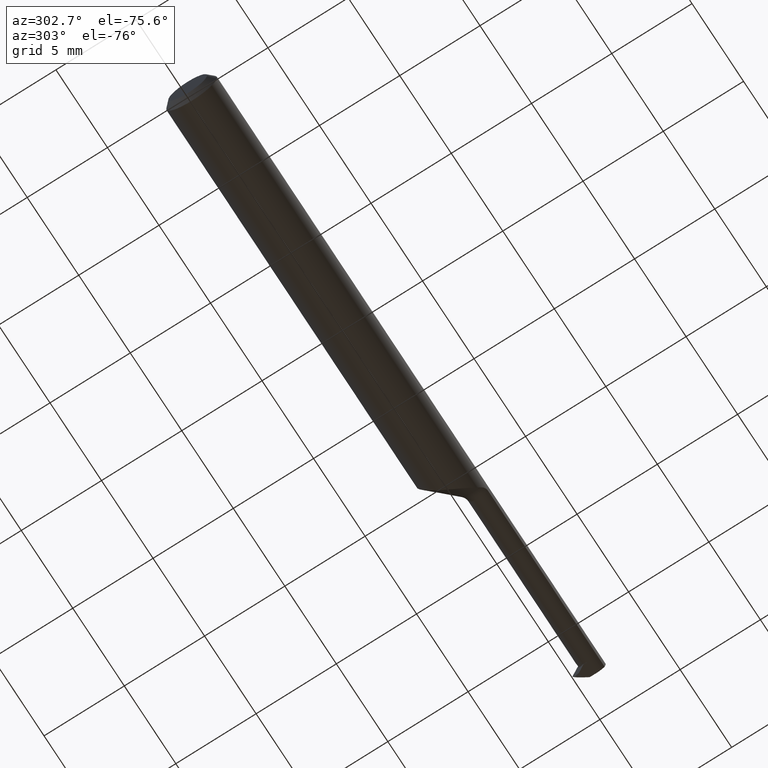
[diagram: clean part render]
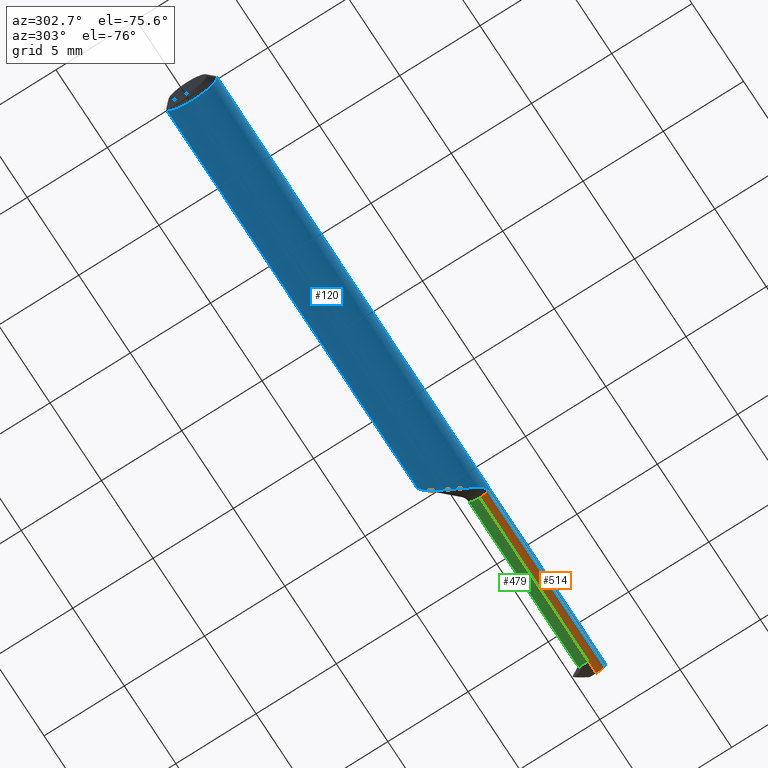
[diagram: same view with three faces highlighted in distinct colors, each labeled with its STEP entity id]
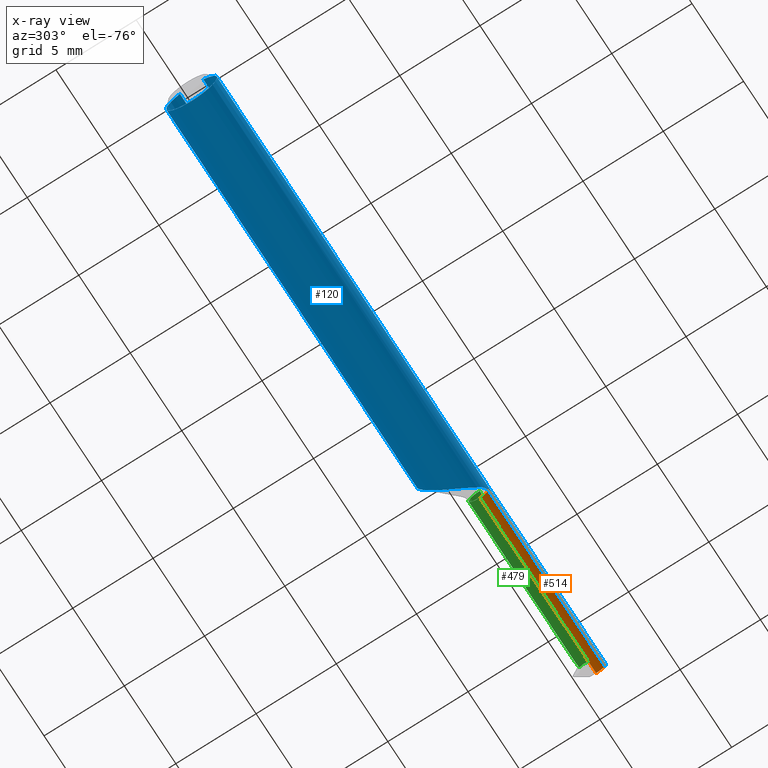
[diagram: x-ray of the same camera — body ghosted, the three highlighted faces saturated]
A machine part, auxiliary view with three faces highlighted in distinct colors.
The next image is the same camera in x-ray (body ghosted, the three faces saturated) — at least one of them is partly hidden behind the body in this view.
Their STEP definitions:

[orange] entity #514 — the highlighted cylindrical surface (edge-blend (fillet) strip) has radius 0.6985 mm, axis along (-1, -0, -0).
#7 = ORIENTED_EDGE ( 'NONE', *, *, #414, .T. ) ;
#25 = VECTOR ( 'NONE', #646, 39.37007874015748143 ) ;
#39 = VERTEX_POINT ( 'NONE', #274 ) ;
#89 = VERTEX_POINT ( 'NONE', #464 ) ;
#93 = DIRECTION ( 'NONE',  ( -1.000000000000000000, -0.000000000000000000, -0.000000000000000000 ) ) ;
#96 = VERTEX_POINT ( 'NONE', #547 ) ;
#101 = CARTESIAN_POINT ( 'NONE',  ( 1.499999999999999778, -0.03885000000000000259, 0.000000000000000000 ) ) ;
#112 = VECTOR ( 'NONE', #947, 39.37007874015748143 ) ;
#129 = ORIENTED_EDGE ( 'NONE', *, *, #722, .F. ) ;
#151 = EDGE_CURVE ( 'NONE', #971, #39, #1063, .T. ) ;
#158 = CYLINDRICAL_SURFACE ( 'NONE', #763, 0.02749999999999999667 ) ;
#209 = CARTESIAN_POINT ( 'NONE',  ( 1.055355339059327324, -0.03885000000000000259, -0.02749999999999999667 ) ) ;
#228 = DIRECTION ( 'NONE',  ( 1.000000000000000000, 0.000000000000000000, 0.000000000000000000 ) ) ;
#254 = ORIENTED_EDGE ( 'NONE', *, *, #151, .F. ) ;
#274 = CARTESIAN_POINT ( 'NONE',  ( 1.469999999999999973, -0.03885000000000000259, -0.02750000000000000014 ) ) ;
#283 = ORIENTED_EDGE ( 'NONE', *, *, #998, .T. ) ;
#316 = FACE_OUTER_BOUND ( 'NONE', #372, .T. ) ;
#352 = CIRCLE ( 'NONE', #762, 0.02749999999999999667 ) ;
#354 = CIRCLE ( 'NONE', #625, 0.02749999999999999667 ) ;
#372 = EDGE_LOOP ( 'NONE', ( #129, #254, #1004, #7, #283 ) ) ;
#386 = EDGE_CURVE ( 'NONE', #89, #971, #352, .T. ) ;
#390 = DIRECTION ( 'NONE',  ( -1.000000000000000000, -0.000000000000000000, -0.000000000000000000 ) ) ;
#414 = EDGE_CURVE ( 'NONE', #89, #96, #1038, .T. ) ;
#464 = CARTESIAN_POINT ( 'NONE',  ( 1.499999999999999778, -0.05972451737451738019, -0.01790264015113334287 ) ) ;
#487 = DIRECTION ( 'NONE',  ( 0.000000000000000000, 0.000000000000000000, 1.000000000000000000 ) ) ;
#514 = ADVANCED_FACE ( 'NONE', ( #316 ), #158, .T. ) ;
#547 = CARTESIAN_POINT ( 'NONE',  ( 1.055355339059327324, -0.05972451737451738019, -0.01790264015113335327 ) ) ;
#561 = DIRECTION ( 'NONE',  ( 0.000000000000000000, 0.000000000000000000, 1.000000000000000000 ) ) ;
#615 = CARTESIAN_POINT ( 'NONE',  ( 1.257499999999999840, -0.05972451737451738019, -0.01790264015113335327 ) ) ;
#625 = AXIS2_PLACEMENT_3D ( 'NONE', #968, #228, #561 ) ;
#637 = CARTESIAN_POINT ( 'NONE',  ( 1.499999999999999778, -0.03885000000000000259, -0.02750000000000000014 ) ) ;
#646 = DIRECTION ( 'NONE',  ( -1.000000000000000000, -0.000000000000000000, -0.000000000000000000 ) ) ;
#665 = CARTESIAN_POINT ( 'NONE',  ( 1.044999999999999929, -0.03885000000000000259, -0.02749999999999999667 ) ) ;
#691 = DIRECTION ( 'NONE',  ( 0.000000000000000000, 0.000000000000000000, 1.000000000000000000 ) ) ;
#722 = EDGE_CURVE ( 'NONE', #39, #843, #829, .T. ) ;
#762 = AXIS2_PLACEMENT_3D ( 'NONE', #101, #1026, #691 ) ;
#763 = AXIS2_PLACEMENT_3D ( 'NONE', #984, #390, #487 ) ;
#829 = LINE ( 'NONE', #665, #872 ) ;
#843 = VERTEX_POINT ( 'NONE', #209 ) ;
#872 = VECTOR ( 'NONE', #93, 39.37007874015748143 ) ;
#897 = CARTESIAN_POINT ( 'NONE',  ( 1.499999999999999778, -0.03885000000000000259, -0.02750000000000000014 ) ) ;
#947 = DIRECTION ( 'NONE',  ( -1.000000000000000000, -0.000000000000000000, -0.000000000000000000 ) ) ;
#968 = CARTESIAN_POINT ( 'NONE',  ( 1.055355339059327324, -0.03885000000000000259, 0.000000000000000000 ) ) ;
#971 = VERTEX_POINT ( 'NONE', #637 ) ;
#984 = CARTESIAN_POINT ( 'NONE',  ( 1.044999999999999929, -0.03885000000000000259, 0.000000000000000000 ) ) ;
#998 = EDGE_CURVE ( 'NONE', #96, #843, #354, .T. ) ;
#1004 = ORIENTED_EDGE ( 'NONE', *, *, #386, .F. ) ;
#1026 = DIRECTION ( 'NONE',  ( 1.000000000000000000, -0.000000000000000000, -0.000000000000000000 ) ) ;
#1038 = LINE ( 'NONE', #615, #112 ) ;
#1063 = LINE ( 'NONE', #897, #25 ) ;

[blue] entity #120 — the highlighted cylindrical surface (edge-blend (fillet) strip) has radius 1.5837 mm, axis along (-1, -0, -0).
#4 = EDGE_CURVE ( 'NONE', #69, #52, #277, .T. ) ;
#17 = CARTESIAN_POINT ( 'NONE',  ( 1.037677669529663449, -0.05385135522026621852, -0.03142537256645825533 ) ) ;
#21 = CARTESIAN_POINT ( 'NONE',  ( 0.9722224356403925682, 0.05995626412827578799, -0.01772608049554733403 ) ) ;
#27 = DIRECTION ( 'NONE',  ( -1.000000000000000000, -0.000000000000000000, -0.000000000000000000 ) ) ;
#35 = DIRECTION ( 'NONE',  ( 0.000000000000000000, 0.000000000000000000, -1.000000000000000000 ) ) ;
#38 = DIRECTION ( 'NONE',  ( 0.000000000000000000, 0.000000000000000000, -1.000000000000000000 ) ) ;
#43 = AXIS2_PLACEMENT_3D ( 'NONE', #581, #772, #35 ) ;
#48 = VERTEX_POINT ( 'NONE', #366 ) ;
#52 = VERTEX_POINT ( 'NONE', #769 ) ;
#54 = EDGE_CURVE ( 'NONE', #949, #89, #1058, .T. ) ;
#62 = DIRECTION ( 'NONE',  ( -1.000000000000000000, -0.000000000000000000, -0.000000000000000000 ) ) ;
#63 = CARTESIAN_POINT ( 'NONE',  ( 0.9729442690431107099, 0.05809375549093097335, 0.02309712269758999389 ) ) ;
#66 = DIRECTION ( 'NONE',  ( 0.000000000000000000, 0.000000000000000000, 1.000000000000000000 ) ) ;
#69 = VERTEX_POINT ( 'NONE', #391 ) ;
#85 = CARTESIAN_POINT ( 'NONE',  ( 0.9713154247326142299, 0.06230982057334929353, 0.005130711495986848419 ) ) ;
#88 = CARTESIAN_POINT ( 'NONE',  ( 1.037677669529663449, -0.05385135522026621852, -0.03142537256645825533 ) ) ;
#89 = VERTEX_POINT ( 'NONE', #464 ) ;
#96 = VERTEX_POINT ( 'NONE', #547 ) ;
#99 = EDGE_CURVE ( 'NONE', #302, #753, #966, .T. ) ;
#103 = CARTESIAN_POINT ( 'NONE',  ( 0.9980987072500633328, 0.001730114354342544717, -0.06245995668959661296 ) ) ;
#107 = CARTESIAN_POINT ( 'NONE',  ( 1.023733208020211061, -0.03885000000000005810, 0.04876679197978883024 ) ) ;
#112 = VECTOR ( 'NONE', #947, 39.37007874015748143 ) ;
#117 = ORIENTED_EDGE ( 'NONE', *, *, #344, .T. ) ;
#120 = ADVANCED_FACE ( 'NONE', ( #864 ), #141, .T. ) ;
#121 = CARTESIAN_POINT ( 'NONE',  ( 0.9851666200689770392, 0.02870365830342894511, 0.05534999999999997561 ) ) ;
#123 = ORIENTED_EDGE ( 'NONE', *, *, #703, .F. ) ;
#126 = EDGE_LOOP ( 'NONE', ( #244, #937, #688, #375, #1021, #123, #724, #807, #773, #575, #367, #117, #267, #505, #392, #636 ) ) ;
#127 = CARTESIAN_POINT ( 'NONE',  ( 1.439999999999999947, -0.06234999999999999570, -6.429183357567478880E-17 ) ) ;
#134 = EDGE_CURVE ( 'NONE', #949, #790, #559, .T. ) ;
#141 = CYLINDRICAL_SURFACE ( 'NONE', #582, 0.06235000000000000264 ) ;
#150 = CARTESIAN_POINT ( 'NONE',  ( 1.439999999999999947, 0.000000000000000000, 0.000000000000000000 ) ) ;
#162 = LINE ( 'NONE', #648, #903 ) ;
#165 = CARTESIAN_POINT ( 'NONE',  ( 0.9742893586426695229, 0.05467086465906029202, -0.03031740632397479651 ) ) ;
#181 = B_SPLINE_CURVE_WITH_KNOTS ( 'NONE', 3,
 ( #649, #721, #921, #256, #580, #846, #272, #760 ),
 .UNSPECIFIED., .F., .F.,
 ( 4, 2, 2, 4 ),
 ( 0.000000000000000000, 0.0001520623912201034408, 0.0003041247824402068816, 0.0006082495648804138715 ),
 .UNSPECIFIED. ) ;
#189 = CARTESIAN_POINT ( 'NONE',  ( 0.9817422602534694454, 0.03640149399939510144, 0.05135802085830259295 ) ) ;
#193 = CARTESIAN_POINT ( 'NONE',  ( 1.033302845076482734, -0.04993007895621526249, 0.03814497598772664116 ) ) ;
#195 = DIRECTION ( 'NONE',  ( 1.000000000000000000, 0.000000000000000000, 0.000000000000000000 ) ) ;
#198 = CIRCLE ( 'NONE', #504, 0.06235000000000000264 ) ;
#200 = CARTESIAN_POINT ( 'NONE',  ( 0.9788518337353812049, 0.04334661969057043013, 0.04571092020812050211 ) ) ;
#207 = EDGE_CURVE ( 'NONE', #431, #871, #336, .T. ) ;
#211 = CARTESIAN_POINT ( 'NONE',  ( 1.018733531415046745, -0.03233321753624625317, 0.05346776643160169179 ) ) ;
#229 = CARTESIAN_POINT ( 'NONE',  ( 1.433976312694926536, -0.06233532789531963381, 0.006173687305072898118 ) ) ;
#233 = CARTESIAN_POINT ( 'NONE',  ( 1.499999999999999778, -0.06235000000000000264, -6.429183357567480113E-17 ) ) ;
#244 = ORIENTED_EDGE ( 'NONE', *, *, #414, .F. ) ;
#252 = CARTESIAN_POINT ( 'NONE',  ( 1.014024832587619329, -0.02552496785297198381, -0.05702093782527752064 ) ) ;
#256 = CARTESIAN_POINT ( 'NONE',  ( 1.047866206273388112, -0.05894694571550945783, 0.02033969457127459204 ) ) ;
#267 = ORIENTED_EDGE ( 'NONE', *, *, #1031, .T. ) ;
#270 = CARTESIAN_POINT ( 'NONE',  ( 1.028462430296367858, -0.04478639636982031935, 0.04403756970363210954 ) ) ;
#272 = CARTESIAN_POINT ( 'NONE',  ( 1.039645236820547547, -0.05561494025053111134, 0.02840324629810313944 ) ) ;
#277 = B_SPLINE_CURVE_WITH_KNOTS ( 'NONE', 3,
 ( #330, #592, #751, #252, #407, #584, #926, #674, #103, #488, #658, #999, #496, #429, #735, #827, #651, #931, #165, #485, #21, #817, #985, #85, #358, #848, #63, #712, #516, #200, #189, #121 ),
 .UNSPECIFIED., .F., .F.,
 ( 4, 2, 2, 2, 2, 2, 2, 2, 2, 2, 2, 2, 2, 2, 2, 4 ),
 ( 0.001101739622096912195, 0.001452069894890159214, 0.001802400167683406232, 0.002152730440476653250, 0.002503060713269900268, 0.002853390986063147287, 0.003203721258856394305, 0.003554051531649641323, 0.003904381804442888775, 0.004254712077236135793, 0.004605042350029382378, 0.004955372622822629830, 0.005305702895615876415, 0.005656033168409123867, 0.006006363441202370451, 0.006707023986788866222 ),
 .UNSPECIFIED. ) ;
#299 = CARTESIAN_POINT ( 'NONE',  ( 1.016227708862855295, -0.02870365830342892083, 0.05534999999999997561 ) ) ;
#300 = CARTESIAN_POINT ( 'NONE',  ( 1.499999999999999778, 0.000000000000000000, 0.000000000000000000 ) ) ;
#302 = VERTEX_POINT ( 'NONE', #107 ) ;
#304 = CARTESIAN_POINT ( 'NONE',  ( 1.439999999999999947, -0.06234981956669986836, 0.0001500000000000043779 ) ) ;
#305 = EDGE_CURVE ( 'NONE', #879, #69, #783, .T. ) ;
#306 = CARTESIAN_POINT ( 'NONE',  ( 1.499999999999999778, 0.000000000000000000, 0.000000000000000000 ) ) ;
#325 = DIRECTION ( 'NONE',  ( 1.000000000000000000, 0.000000000000000000, 0.000000000000000000 ) ) ;
#330 = CARTESIAN_POINT ( 'NONE',  ( 1.023733208020211061, -0.03885000000000004422, -0.04876679197978883717 ) ) ;
#336 = LINE ( 'NONE', #970, #400 ) ;
#344 = EDGE_CURVE ( 'NONE', #402, #604, #813, .T. ) ;
#348 = CARTESIAN_POINT ( 'NONE',  ( 1.047832365247211683, -0.05894029795486797896, -0.02035956102986121938 ) ) ;
#357 = CARTESIAN_POINT ( 'NONE',  ( 1.035473170448187652, -0.05187540166719752099, -0.03481141919040901811 ) ) ;
#358 = CARTESIAN_POINT ( 'NONE',  ( 0.9715312839368115405, 0.06174610747500347552, 0.009795929746699049909 ) ) ;
#361 = CARTESIAN_POINT ( 'NONE',  ( 1.026104383698202227, -0.04182643837930852260, -0.04639561630179755286 ) ) ;
#366 = CARTESIAN_POINT ( 'NONE',  ( 1.439999999999999947, -0.06234981956669986836, 0.0001500000000000043779 ) ) ;
#367 = ORIENTED_EDGE ( 'NONE', *, *, #750, .T. ) ;
#375 = ORIENTED_EDGE ( 'NONE', *, *, #611, .T. ) ;
#384 = CIRCLE ( 'NONE', #990, 0.06235000000000000264 ) ;
#391 = CARTESIAN_POINT ( 'NONE',  ( 1.023733208020211061, -0.03885000000000004422, -0.04876679197978883717 ) ) ;
#392 = ORIENTED_EDGE ( 'NONE', *, *, #305, .F. ) ;
#393 = CARTESIAN_POINT ( 'NONE',  ( 1.499999999999999778, -0.06234999999999984999, -6.429183357567480113E-17 ) ) ;
#400 = VECTOR ( 'NONE', #723, 39.37007874015748143 ) ;
#402 = VERTEX_POINT ( 'NONE', #1047 ) ;
#407 = CARTESIAN_POINT ( 'NONE',  ( 1.011663494146211262, -0.02189427596136639051, -0.05851335289745216578 ) ) ;
#413 = CARTESIAN_POINT ( 'NONE',  ( 1.055355339059327324, -0.05972451737451738019, -0.01790264015113335327 ) ) ;
#414 = EDGE_CURVE ( 'NONE', #89, #96, #1038, .T. ) ;
#421 = CARTESIAN_POINT ( 'NONE',  ( 0.01499999999999943046, 0.000000000000000000, 0.000000000000000000 ) ) ;
#429 = CARTESIAN_POINT ( 'NONE',  ( 0.9830508205128779542, 0.03348191903871845093, -0.05277080232193186865 ) ) ;
#431 = VERTEX_POINT ( 'NONE', #530 ) ;
#435 = DIRECTION ( 'NONE',  ( 1.000000000000000000, 0.000000000000000000, 0.000000000000000000 ) ) ;
#464 = CARTESIAN_POINT ( 'NONE',  ( 1.499999999999999778, -0.05972451737451738019, -0.01790264015113334287 ) ) ;
#485 = CARTESIAN_POINT ( 'NONE',  ( 0.9727941773035805317, 0.05847937178585023432, -0.02209551185907620077 ) ) ;
#488 = CARTESIAN_POINT ( 'NONE',  ( 0.9939622945388311148, 0.009871926661208896281, -0.06169914545065514205 ) ) ;
#493 = EDGE_CURVE ( 'NONE', #431, #302, #863, .T. ) ;
#496 = CARTESIAN_POINT ( 'NONE',  ( 0.9863768401225404547, 0.02596638437152509402, -0.05684666536293861427 ) ) ;
#504 = AXIS2_PLACEMENT_3D ( 'NONE', #150, #62, #66 ) ;
#505 = ORIENTED_EDGE ( 'NONE', *, *, #4, .F. ) ;
#506 = CARTESIAN_POINT ( 'NONE',  ( 1.039646166234848401, -0.05561577331029759347, -0.02840181874470474113 ) ) ;
#516 = CARTESIAN_POINT ( 'NONE',  ( 0.9754637940028884069, 0.05171048713799047264, 0.03512508805924585004 ) ) ;
#528 = CARTESIAN_POINT ( 'NONE',  ( 1.037677669529663449, -0.05385135522026621852, -0.03142537256645825533 ) ) ;
#530 = CARTESIAN_POINT ( 'NONE',  ( 1.016227708862855295, -0.02870365830342892083, 0.05534999999999997561 ) ) ;
#539 = DIRECTION ( 'NONE',  ( 0.000000000000000000, 0.000000000000000000, -1.000000000000000000 ) ) ;
#546 = CARTESIAN_POINT ( 'NONE',  ( 1.021233181470025064, -0.03571182047060825898, 0.05126681852997484745 ) ) ;
#547 = CARTESIAN_POINT ( 'NONE',  ( 1.055355339059327324, -0.05972451737451738019, -0.01790264015113335327 ) ) ;
#554 = CARTESIAN_POINT ( 'NONE',  ( 0.01499999999999943046, 0.02870365830342891042, 0.05534999999999997561 ) ) ;
#559 = LINE ( 'NONE', #233, #923 ) ;
#575 = ORIENTED_EDGE ( 'NONE', *, *, #207, .T. ) ;
#580 = CARTESIAN_POINT ( 'NONE',  ( 1.046280325031175407, -0.05852565866479598339, 0.02154519892461237776 ) ) ;
#581 = CARTESIAN_POINT ( 'NONE',  ( 0.01499999999999943046, 0.000000000000000000, 0.000000000000000000 ) ) ;
#582 = AXIS2_PLACEMENT_3D ( 'NONE', #306, #27, #794 ) ;
#584 = CARTESIAN_POINT ( 'NONE',  ( 1.007007020503531747, -0.01432349193528253961, -0.06081126019047899955 ) ) ;
#591 = EDGE_CURVE ( 'NONE', #48, #621, #1020, .T. ) ;
#592 = CARTESIAN_POINT ( 'NONE',  ( 1.021302242280715200, -0.03579850963891901411, -0.05119775771928491287 ) ) ;
#595 = CARTESIAN_POINT ( 'NONE',  ( 1.051372085594429295, -0.05954725492163364525, -0.01850931872423289271 ) ) ;
#597 = CARTESIAN_POINT ( 'NONE',  ( 1.037677669529663671, -0.05385135522026623933, 0.03142537256645821370 ) ) ;
#600 = LINE ( 'NONE', #825, #833 ) ;
#604 = VERTEX_POINT ( 'NONE', #554 ) ;
#611 = EDGE_CURVE ( 'NONE', #790, #48, #198, .T. ) ;
#614 = CARTESIAN_POINT ( 'NONE',  ( 1.037677669529663671, -0.05385135522026623933, 0.03142537256645821370 ) ) ;
#615 = CARTESIAN_POINT ( 'NONE',  ( 1.257499999999999840, -0.05972451737451738019, -0.01790264015113335327 ) ) ;
#621 = VERTEX_POINT ( 'NONE', #806 ) ;
#624 = EDGE_CURVE ( 'NONE', #770, #753, #181, .T. ) ;
#629 = CARTESIAN_POINT ( 'NONE',  ( 1.055355339059327324, -0.05972451737451738019, 0.01790264015113335327 ) ) ;
#636 = ORIENTED_EDGE ( 'NONE', *, *, #650, .T. ) ;
#648 = CARTESIAN_POINT ( 'NONE',  ( 1.499999999999999778, 0.02870365830342891042, 0.05534999999999997561 ) ) ;
#649 = CARTESIAN_POINT ( 'NONE',  ( 1.055355339059327324, -0.05972451737451738019, 0.01790264015113335327 ) ) ;
#650 = EDGE_CURVE ( 'NONE', #879, #96, #1006, .T. ) ;
#651 = CARTESIAN_POINT ( 'NONE',  ( 0.9774289783678591359, 0.04685261614492793047, -0.04138162750821652858 ) ) ;
#658 = CARTESIAN_POINT ( 'NONE',  ( 0.9919428333759211514, 0.01401562437592556755, -0.06089969750970326140 ) ) ;
#669 = CARTESIAN_POINT ( 'NONE',  ( 1.041943994022896725, -0.05698081298991460736, -0.02546658166223209063 ) ) ;
#670 = CARTESIAN_POINT ( 'NONE',  ( 1.033136677840553519, -0.04958604436897170314, -0.03799189746475382240 ) ) ;
#674 = CARTESIAN_POINT ( 'NONE',  ( 1.000237676234067008, -0.002316031014453404265, -0.06243737786633629661 ) ) ;
#688 = ORIENTED_EDGE ( 'NONE', *, *, #134, .T. ) ;
#703 = EDGE_CURVE ( 'NONE', #770, #621, #600, .T. ) ;
#710 = CARTESIAN_POINT ( 'NONE',  ( 1.023733208020211061, -0.03885000000000005810, 0.04876679197978883024 ) ) ;
#712 = CARTESIAN_POINT ( 'NONE',  ( 0.9745111317877577228, 0.05411016124583019338, 0.03131216942177360990 ) ) ;
#721 = CARTESIAN_POINT ( 'NONE',  ( 1.053323818102751996, -0.05972451737451739406, 0.01790264015113335674 ) ) ;
#723 = DIRECTION ( 'NONE',  ( -1.000000000000000000, -0.000000000000000000, -0.000000000000000000 ) ) ;
#724 = ORIENTED_EDGE ( 'NONE', *, *, #624, .T. ) ;
#728 = AXIS2_PLACEMENT_3D ( 'NONE', #300, #435, #38 ) ;
#729 = DIRECTION ( 'NONE',  ( -1.000000000000000000, -0.000000000000000000, -0.000000000000000000 ) ) ;
#735 = CARTESIAN_POINT ( 'NONE',  ( 0.9814802025360713778, 0.03714017182121944621, -0.05027298511984105295 ) ) ;
#750 = EDGE_CURVE ( 'NONE', #871, #402, #384, .T. ) ;
#751 = CARTESIAN_POINT ( 'NONE',  ( 1.018837401997772174, -0.03247053773144352451, -0.05337204805701500215 ) ) ;
#753 = VERTEX_POINT ( 'NONE', #614 ) ;
#760 = CARTESIAN_POINT ( 'NONE',  ( 1.037677669529663671, -0.05385135522026623933, 0.03142537256645821370 ) ) ;
#769 = CARTESIAN_POINT ( 'NONE',  ( 0.9851666200689770392, 0.02870365830342894511, 0.05534999999999997561 ) ) ;
#770 = VERTEX_POINT ( 'NONE', #629 ) ;
#772 = DIRECTION ( 'NONE',  ( 1.000000000000000000, -0.000000000000000000, -0.000000000000000000 ) ) ;
#773 = ORIENTED_EDGE ( 'NONE', *, *, #493, .F. ) ;
#783 = B_SPLINE_CURVE_WITH_KNOTS ( 'NONE', 3,
 ( #17, #357, #670, #1010, #361, #858 ),
 .UNSPECIFIED., .F., .F.,
 ( 4, 2, 4 ),
 ( 0.0004183119549644549935, 0.0007600257885306837841, 0.001101739622096912195 ),
 .UNSPECIFIED. ) ;
#790 = VERTEX_POINT ( 'NONE', #127 ) ;
#794 = DIRECTION ( 'NONE',  ( 0.000000000000000000, 0.000000000000000000, 1.000000000000000000 ) ) ;
#806 = CARTESIAN_POINT ( 'NONE',  ( 1.422247359848866521, -0.05972451737451737325, 0.01790264015113332552 ) ) ;
#807 = ORIENTED_EDGE ( 'NONE', *, *, #99, .F. ) ;
#813 = CIRCLE ( 'NONE', #43, 0.06235000000000000264 ) ;
#817 = CARTESIAN_POINT ( 'NONE',  ( 0.9714656235680450003, 0.06191707889145184329, -0.008674265358168410309 ) ) ;
#825 = CARTESIAN_POINT ( 'NONE',  ( 1.257499999999999840, -0.05972451737451738019, 0.01790264015113335327 ) ) ;
#827 = CARTESIAN_POINT ( 'NONE',  ( 0.9786750787484953529, 0.04381343202039987561, -0.04457744463698271042 ) ) ;
#833 = VECTOR ( 'NONE', #195, 39.37007874015748143 ) ;
#846 = CARTESIAN_POINT ( 'NONE',  ( 1.041989579914387676, -0.05700082608612308532, 0.02541911880645866123 ) ) ;
#848 = CARTESIAN_POINT ( 'NONE',  ( 0.9723414015603503158, 0.05964910899297361235, 0.01872233490410041626 ) ) ;
#858 = CARTESIAN_POINT ( 'NONE',  ( 1.023733208020211061, -0.03885000000000004422, -0.04876679197978883717 ) ) ;
#863 = B_SPLINE_CURVE_WITH_KNOTS ( 'NONE', 3,
 ( #299, #211, #546, #710 ),
 .UNSPECIFIED., .F., .F.,
 ( 4, 4 ),
 ( 5.024367747766425392E-07, 0.0003607294561365229839 ),
 .UNSPECIFIED. ) ;
#864 = FACE_OUTER_BOUND ( 'NONE', #126, .T. ) ;
#871 = VERTEX_POINT ( 'NONE', #877 ) ;
#877 = CARTESIAN_POINT ( 'NONE',  ( 0.01499999999999943393, -0.02870365830342891042, 0.05534999999999997561 ) ) ;
#879 = VERTEX_POINT ( 'NONE', #528 ) ;
#884 = CARTESIAN_POINT ( 'NONE',  ( 1.023733208020211061, -0.03885000000000005810, 0.04876679197978883024 ) ) ;
#889 = CARTESIAN_POINT ( 'NONE',  ( 1.422247359848866521, -0.05972451737451737325, 0.01790264015113332552 ) ) ;
#903 = VECTOR ( 'NONE', #325, 39.37007874015748143 ) ;
#921 = CARTESIAN_POINT ( 'NONE',  ( 1.051367711602119615, -0.05954565274026860089, 0.01851380091108517645 ) ) ;
#923 = VECTOR ( 'NONE', #729, 39.37007874015748143 ) ;
#926 = CARTESIAN_POINT ( 'NONE',  ( 1.004689213440747686, -0.01034100736282002678, -0.06161861505426482338 ) ) ;
#931 = CARTESIAN_POINT ( 'NONE',  ( 0.9752327272728315011, 0.05228920803170250542, -0.03425559017547473439 ) ) ;
#937 = ORIENTED_EDGE ( 'NONE', *, *, #54, .F. ) ;
#947 = DIRECTION ( 'NONE',  ( -1.000000000000000000, -0.000000000000000000, -0.000000000000000000 ) ) ;
#949 = VERTEX_POINT ( 'NONE', #393 ) ;
#966 = B_SPLINE_CURVE_WITH_KNOTS ( 'NONE', 3,
 ( #884, #270, #193, #597 ),
 .UNSPECIFIED., .F., .F.,
 ( 4, 4 ),
 ( 0.0003607294561365229839, 0.001042159677072514992 ),
 .UNSPECIFIED. ) ;
#969 = CARTESIAN_POINT ( 'NONE',  ( 1.428017413709657735, -0.06145411189387772755, 0.01213258629034179303 ) ) ;
#970 = CARTESIAN_POINT ( 'NONE',  ( 1.499999999999999778, -0.02870365830342891042, 0.05534999999999997561 ) ) ;
#985 = CARTESIAN_POINT ( 'NONE',  ( 0.9712862019975229133, 0.06238594198962948978, -0.004102704279450235941 ) ) ;
#990 = AXIS2_PLACEMENT_3D ( 'NONE', #421, #1002, #539 ) ;
#996 = CARTESIAN_POINT ( 'NONE',  ( 1.053325854621962598, -0.05972451737451739406, -0.01790264015113330817 ) ) ;
#999 = CARTESIAN_POINT ( 'NONE',  ( 0.9881491119890887243, 0.02206730022830220156, -0.05846576044194044114 ) ) ;
#1002 = DIRECTION ( 'NONE',  ( 1.000000000000000000, -0.000000000000000000, -0.000000000000000000 ) ) ;
#1006 = B_SPLINE_CURVE_WITH_KNOTS ( 'NONE', 3,
 ( #88, #506, #669, #1016, #348, #595, #996, #413 ),
 .UNSPECIFIED., .F., .F.,
 ( 4, 2, 2, 4 ),
 ( 0.000000000000000000, 0.0003022762442665429504, 0.0004534143663998106851, 0.0006045524885330785282 ),
 .UNSPECIFIED. ) ;
#1010 = CARTESIAN_POINT ( 'NONE',  ( 1.028462588026500590, -0.04456902349515756007, -0.04376942099025404875 ) ) ;
#1016 = CARTESIAN_POINT ( 'NONE',  ( 1.046260737637839000, -0.05852057628485631685, -0.02155977699156467337 ) ) ;
#1020 =( BOUNDED_CURVE ( )  B_SPLINE_CURVE ( 3, ( #304, #229, #969, #889 ),
 .UNSPECIFIED., .F., .T. ) 
 B_SPLINE_CURVE_WITH_KNOTS ( ( 4, 4 ),
 ( 4.714794756562621814, 5.003619720771986579 ),
 .UNSPECIFIED. ) 
 CURVE ( )  GEOMETRIC_REPRESENTATION_ITEM ( )  RATIONAL_B_SPLINE_CURVE ( ( 1.000000000000000000, 0.9930604179854876090, 0.9930604179854876090, 1.000000000000000000 ) ) 
 REPRESENTATION_ITEM ( '' )  );
#1021 = ORIENTED_EDGE ( 'NONE', *, *, #591, .T. ) ;
#1031 = EDGE_CURVE ( 'NONE', #604, #52, #162, .T. ) ;
#1038 = LINE ( 'NONE', #615, #112 ) ;
#1047 = CARTESIAN_POINT ( 'NONE',  ( 0.01499999999999943046, 0.000000000000000000, -0.06235000000000000264 ) ) ;
#1058 = CIRCLE ( 'NONE', #728, 0.06235000000000000264 ) ;

[green] entity #479 — the highlighted cylindrical surface (edge-blend (fillet) strip) has radius 0.6985 mm, axis along (-1, -0, -0).
#3 = CARTESIAN_POINT ( 'NONE',  ( 1.473998689540260143, -0.01335244399941336660, -0.01030168131893761593 ) ) ;
#23 = EDGE_CURVE ( 'NONE', #260, #573, #874, .T. ) ;
#30 = CARTESIAN_POINT ( 'NONE',  ( 1.439999999999999947, -0.03885000000000000259, 0.000000000000000000 ) ) ;
#31 = CARTESIAN_POINT ( 'NONE',  ( 1.450085633874140800, -0.01137227347693187812, -0.001254033422320910331 ) ) ;
#39 = VERTEX_POINT ( 'NONE', #274 ) ;
#53 = LINE ( 'NONE', #708, #781 ) ;
#56 =( BOUNDED_CURVE ( )  B_SPLINE_CURVE ( 3, ( #111, #747, #767, #3 ),
 .UNSPECIFIED., .F., .T. ) 
 B_SPLINE_CURVE_WITH_KNOTS ( ( 4, 4 ),
 ( 2.449194090892291342, 3.122880199127688883 ),
 .UNSPECIFIED. ) 
 CURVE ( )  GEOMETRIC_REPRESENTATION_ITEM ( )  RATIONAL_B_SPLINE_CURVE ( ( 1.000000000000000000, 0.9625351777296486944, 0.9625351777296486944, 1.000000000000000000 ) ) 
 REPRESENTATION_ITEM ( '' )  );
#64 = ORIENTED_EDGE ( 'NONE', *, *, #687, .T. ) ;
#74 = ORIENTED_EDGE ( 'NONE', *, *, #587, .T. ) ;
#93 = DIRECTION ( 'NONE',  ( -1.000000000000000000, -0.000000000000000000, -0.000000000000000000 ) ) ;
#105 = VERTEX_POINT ( 'NONE', #716 ) ;
#110 = VERTEX_POINT ( 'NONE', #686 ) ;
#111 = CARTESIAN_POINT ( 'NONE',  ( 1.469999999999999973, -0.02534988364068801667, -0.02395823153500768743 ) ) ;
#125 = DIRECTION ( 'NONE',  ( -1.000000000000000000, -0.000000000000000000, -0.000000000000000000 ) ) ;
#139 = CARTESIAN_POINT ( 'NONE',  ( 1.448017506185407699, -0.01135000000000000071, -1.260307316919753117E-16 ) ) ;
#145 = CARTESIAN_POINT ( 'NONE',  ( 1.466378685237636814, -0.01225960889696560592, -0.007596819523917332576 ) ) ;
#155 = DIRECTION ( 'NONE',  ( 0.000000000000000000, 0.000000000000000000, 1.000000000000000000 ) ) ;
#157 = DIRECTION ( 'NONE',  ( 1.000000000000000000, 0.000000000000000000, 0.000000000000000000 ) ) ;
#163 = VECTOR ( 'NONE', #808, 39.37007874015748143 ) ;
#179 = DIRECTION ( 'NONE',  ( -1.000000000000000000, -0.000000000000000000, -0.000000000000000000 ) ) ;
#186 = VERTEX_POINT ( 'NONE', #909 ) ;
#188 = DIRECTION ( 'NONE',  ( 1.000000000000000000, 0.000000000000000000, 0.000000000000000000 ) ) ;
#209 = CARTESIAN_POINT ( 'NONE',  ( 1.055355339059327324, -0.03885000000000000259, -0.02749999999999999667 ) ) ;
#238 = EDGE_CURVE ( 'NONE', #599, #573, #1017, .T. ) ;
#251 = CARTESIAN_POINT ( 'NONE',  ( 1.449043903177635206, -0.01135000000000000071, -0.0006418058473708099796 ) ) ;
#260 = VERTEX_POINT ( 'NONE', #520 ) ;
#274 = CARTESIAN_POINT ( 'NONE',  ( 1.469999999999999973, -0.03885000000000000259, -0.02750000000000000014 ) ) ;
#281 = CARTESIAN_POINT ( 'NONE',  ( 1.467497178770021504, -0.01141180453314830090, -0.001842669130049340992 ) ) ;
#285 = DIRECTION ( 'NONE',  ( 0.000000000000000000, 0.000000000000000000, 1.000000000000000000 ) ) ;
#289 = EDGE_CURVE ( 'NONE', #795, #599, #836, .T. ) ;
#308 = ORIENTED_EDGE ( 'NONE', *, *, #23, .F. ) ;
#327 = CARTESIAN_POINT ( 'NONE',  ( 1.467497178770021504, -0.01141180453314830090, -0.001842669130049340992 ) ) ;
#334 = ORIENTED_EDGE ( 'NONE', *, *, #451, .T. ) ;
#341 = ORIENTED_EDGE ( 'NONE', *, *, #1013, .F. ) ;
#364 = CARTESIAN_POINT ( 'NONE',  ( 1.469999999999999973, -0.02534988364068801667, -0.02395823153500768743 ) ) ;
#370 = FACE_OUTER_BOUND ( 'NONE', #667, .T. ) ;
#398 = CARTESIAN_POINT ( 'NONE',  ( 1.055355339059327324, -0.03885000000000000259, 0.000000000000000000 ) ) ;
#401 = VECTOR ( 'NONE', #157, 39.37007874015748143 ) ;
#405 = DIRECTION ( 'NONE',  ( 1.000000000000000000, 0.000000000000000000, 0.000000000000000000 ) ) ;
#418 = CIRCLE ( 'NONE', #565, 0.02749999999999999667 ) ;
#423 =( BOUNDED_CURVE ( )  B_SPLINE_CURVE ( 3, ( #654, #979, #491, #550 ),
 .UNSPECIFIED., .F., .F. ) 
 B_SPLINE_CURVE_WITH_KNOTS ( ( 4, 4 ),
 ( 0.000000000000000000, 1.565341754292656207 ),
 .UNSPECIFIED. ) 
 CURVE ( )  GEOMETRIC_REPRESENTATION_ITEM ( )  RATIONAL_B_SPLINE_CURVE ( ( 1.000000000000000000, 0.8060217544252227251, 0.8060217544252227251, 1.000000000000000000 ) ) 
 REPRESENTATION_ITEM ( '' )  );
#442 = CARTESIAN_POINT ( 'NONE',  ( 1.466931389978672673, -0.01160728073214628391, -0.004753400128772481033 ) ) ;
#451 = EDGE_CURVE ( 'NONE', #759, #39, #973, .T. ) ;
#466 = CARTESIAN_POINT ( 'NONE',  ( 1.044999999999999929, -0.03885000000000000259, 0.02749999999999999667 ) ) ;
#472 = LINE ( 'NONE', #645, #401 ) ;
#479 = ADVANCED_FACE ( 'NONE', ( #370 ), #698, .T. ) ;
#491 = CARTESIAN_POINT ( 'NONE',  ( 1.423960695544647770, -0.01143789751065323913, 0.01618930445535208401 ) ) ;
#520 = CARTESIAN_POINT ( 'NONE',  ( 1.465852913365745858, -0.01335244399941337874, -0.01030168131893767665 ) ) ;
#550 = CARTESIAN_POINT ( 'NONE',  ( 1.439999999999999947, -0.01135040909395196827, 0.0001500000000000043508 ) ) ;
#556 = VERTEX_POINT ( 'NONE', #1071 ) ;
#565 = AXIS2_PLACEMENT_3D ( 'NONE', #30, #179, #1008 ) ;
#573 = VERTEX_POINT ( 'NONE', #327 ) ;
#587 = EDGE_CURVE ( 'NONE', #110, #556, #423, .T. ) ;
#596 = CARTESIAN_POINT ( 'NONE',  ( 1.448017506185407699, -0.01135000000000000071, -1.260307316919753117E-16 ) ) ;
#599 = VERTEX_POINT ( 'NONE', #892 ) ;
#608 = EDGE_CURVE ( 'NONE', #843, #1039, #1060, .T. ) ;
#641 = AXIS2_PLACEMENT_3D ( 'NONE', #867, #125, #706 ) ;
#645 = CARTESIAN_POINT ( 'NONE',  ( 1.044999999999999929, -0.01135000000000000245, -6.429183357567480113E-17 ) ) ;
#654 = CARTESIAN_POINT ( 'NONE',  ( 1.412649999999999739, -0.03885000000000000259, 0.02749999999999999667 ) ) ;
#665 = CARTESIAN_POINT ( 'NONE',  ( 1.044999999999999929, -0.03885000000000000259, -0.02749999999999999667 ) ) ;
#667 = EDGE_LOOP ( 'NONE', ( #334, #1036, #907, #341, #74, #64, #1001, #811, #780, #308, #987, #1007 ) ) ;
#685 = EDGE_CURVE ( 'NONE', #759, #186, #56, .T. ) ;
#686 = CARTESIAN_POINT ( 'NONE',  ( 1.412649999999999739, -0.03885000000000000259, 0.02749999999999999667 ) ) ;
#687 = EDGE_CURVE ( 'NONE', #556, #105, #418, .T. ) ;
#698 = CYLINDRICAL_SURFACE ( 'NONE', #941, 0.02749999999999999667 ) ;
#706 = DIRECTION ( 'NONE',  ( 0.000000000000000000, 0.000000000000000000, 1.000000000000000000 ) ) ;
#708 = CARTESIAN_POINT ( 'NONE',  ( 1.044999999999999929, -0.01335244399941336660, -0.01030168131893761593 ) ) ;
#716 = CARTESIAN_POINT ( 'NONE',  ( 1.439999999999999947, -0.01135000000000000765, -6.429183357567478880E-17 ) ) ;
#722 = EDGE_CURVE ( 'NONE', #39, #843, #829, .T. ) ;
#732 = LINE ( 'NONE', #466, #163 ) ;
#747 = CARTESIAN_POINT ( 'NONE',  ( 1.472539479307767074, -0.01986546682402295927, -0.02086784211791909566 ) ) ;
#759 = VERTEX_POINT ( 'NONE', #364 ) ;
#767 = CARTESIAN_POINT ( 'NONE',  ( 1.473924256242947983, -0.01571066122354151939, -0.01613847376787706789 ) ) ;
#774 = CARTESIAN_POINT ( 'NONE',  ( 1.465852913365745858, -0.01335244399941337874, -0.01030168131893767665 ) ) ;
#780 = ORIENTED_EDGE ( 'NONE', *, *, #238, .T. ) ;
#781 = VECTOR ( 'NONE', #946, 39.37007874015748143 ) ;
#795 = VERTEX_POINT ( 'NONE', #139 ) ;
#808 = DIRECTION ( 'NONE',  ( -1.000000000000000000, -0.000000000000000000, -0.000000000000000000 ) ) ;
#811 = ORIENTED_EDGE ( 'NONE', *, *, #289, .T. ) ;
#829 = LINE ( 'NONE', #665, #872 ) ;
#836 = B_SPLINE_CURVE_WITH_KNOTS ( 'NONE', 3,
 ( #596, #251, #31, #916 ),
 .UNSPECIFIED., .F., .F.,
 ( 4, 4 ),
 ( 0.002405170788690665171, 0.002495871224388635911 ),
 .UNSPECIFIED. ) ;
#843 = VERTEX_POINT ( 'NONE', #209 ) ;
#867 = CARTESIAN_POINT ( 'NONE',  ( 1.469999999999999973, -0.03885000000000000259, 0.000000000000000000 ) ) ;
#872 = VECTOR ( 'NONE', #93, 39.37007874015748143 ) ;
#874 =( BOUNDED_CURVE ( )  B_SPLINE_CURVE ( 3, ( #774, #145, #442, #281 ),
 .UNSPECIFIED., .F., .T. ) 
 B_SPLINE_CURVE_WITH_KNOTS ( ( 4, 4 ),
 ( 1.186823891356142191, 1.503739934061824934 ),
 .UNSPECIFIED. ) 
 CURVE ( )  GEOMETRIC_REPRESENTATION_ITEM ( )  RATIONAL_B_SPLINE_CURVE ( ( 1.000000000000000000, 0.9916478499246449418, 0.9916478499246449418, 1.000000000000000000 ) ) 
 REPRESENTATION_ITEM ( '' )  );
#878 = CARTESIAN_POINT ( 'NONE',  ( 1.044999999999999929, -0.03885000000000000259, 0.000000000000000000 ) ) ;
#880 = CARTESIAN_POINT ( 'NONE',  ( 1.055355339059327324, -0.03885000000000000259, 0.02749999999999999667 ) ) ;
#881 = EDGE_CURVE ( 'NONE', #186, #260, #53, .T. ) ;
#887 = VECTOR ( 'NONE', #188, 39.37007874015748143 ) ;
#892 = CARTESIAN_POINT ( 'NONE',  ( 1.451139615764244439, -0.01141180453314840325, -0.001842669130049391299 ) ) ;
#907 = ORIENTED_EDGE ( 'NONE', *, *, #608, .T. ) ;
#909 = CARTESIAN_POINT ( 'NONE',  ( 1.473998689540260143, -0.01335244399941336660, -0.01030168131893761593 ) ) ;
#916 = CARTESIAN_POINT ( 'NONE',  ( 1.451139615764244439, -0.01141180453314840325, -0.001842669130049391299 ) ) ;
#922 = CARTESIAN_POINT ( 'NONE',  ( 1.044999999999999929, -0.01141180453314826100, -0.001842669130049338607 ) ) ;
#941 = AXIS2_PLACEMENT_3D ( 'NONE', #878, #1034, #285 ) ;
#946 = DIRECTION ( 'NONE',  ( -1.000000000000000000, -0.000000000000000000, -0.000000000000000000 ) ) ;
#951 = EDGE_CURVE ( 'NONE', #105, #795, #472, .T. ) ;
#956 = AXIS2_PLACEMENT_3D ( 'NONE', #398, #405, #155 ) ;
#973 = CIRCLE ( 'NONE', #641, 0.02749999999999999667 ) ;
#979 = CARTESIAN_POINT ( 'NONE',  ( 1.412649999999999739, -0.02281045693810032637, 0.02750000000000000014 ) ) ;
#987 = ORIENTED_EDGE ( 'NONE', *, *, #881, .F. ) ;
#1001 = ORIENTED_EDGE ( 'NONE', *, *, #951, .T. ) ;
#1007 = ORIENTED_EDGE ( 'NONE', *, *, #685, .F. ) ;
#1008 = DIRECTION ( 'NONE',  ( 0.000000000000000000, 0.000000000000000000, 1.000000000000000000 ) ) ;
#1013 = EDGE_CURVE ( 'NONE', #110, #1039, #732, .T. ) ;
#1017 = LINE ( 'NONE', #922, #887 ) ;
#1034 = DIRECTION ( 'NONE',  ( -1.000000000000000000, -0.000000000000000000, -0.000000000000000000 ) ) ;
#1036 = ORIENTED_EDGE ( 'NONE', *, *, #722, .T. ) ;
#1039 = VERTEX_POINT ( 'NONE', #880 ) ;
#1060 = CIRCLE ( 'NONE', #956, 0.02749999999999999667 ) ;
#1071 = CARTESIAN_POINT ( 'NONE',  ( 1.439999999999999947, -0.01135040909395196827, 0.0001500000000000043508 ) ) ;